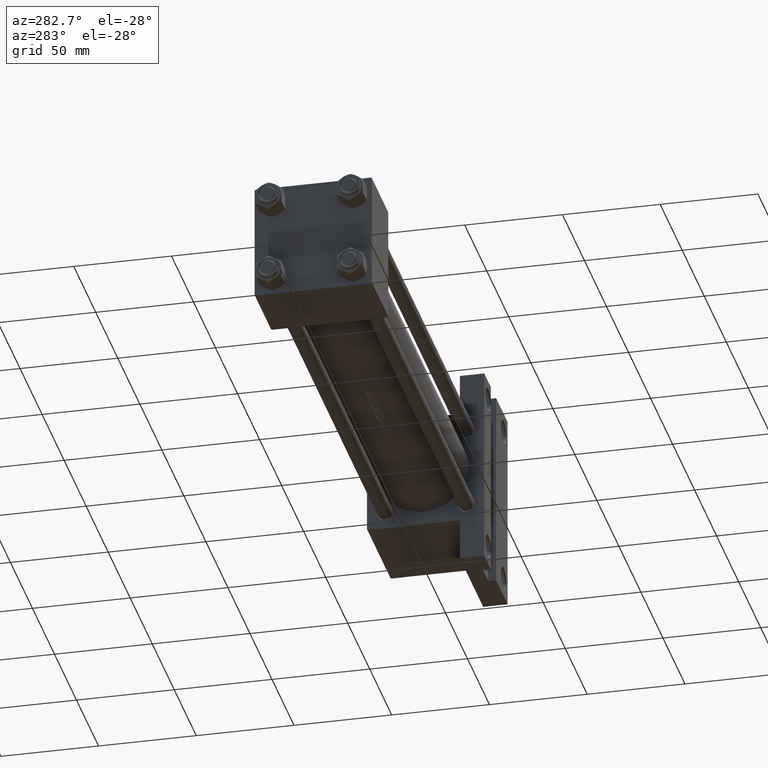
[diagram: clean part render]
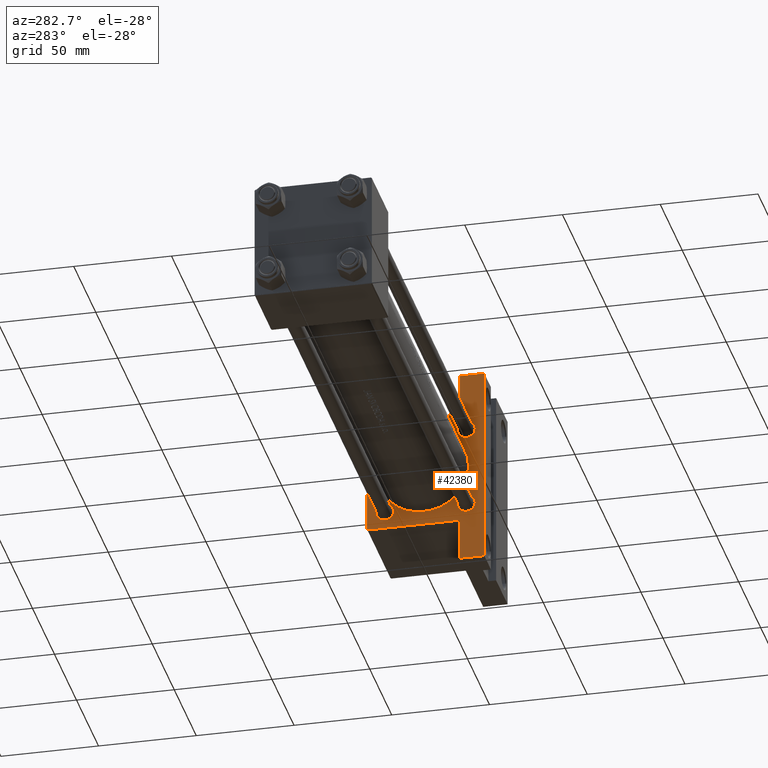
[diagram: same view with one face highlighted and labeled with its STEP entity id]
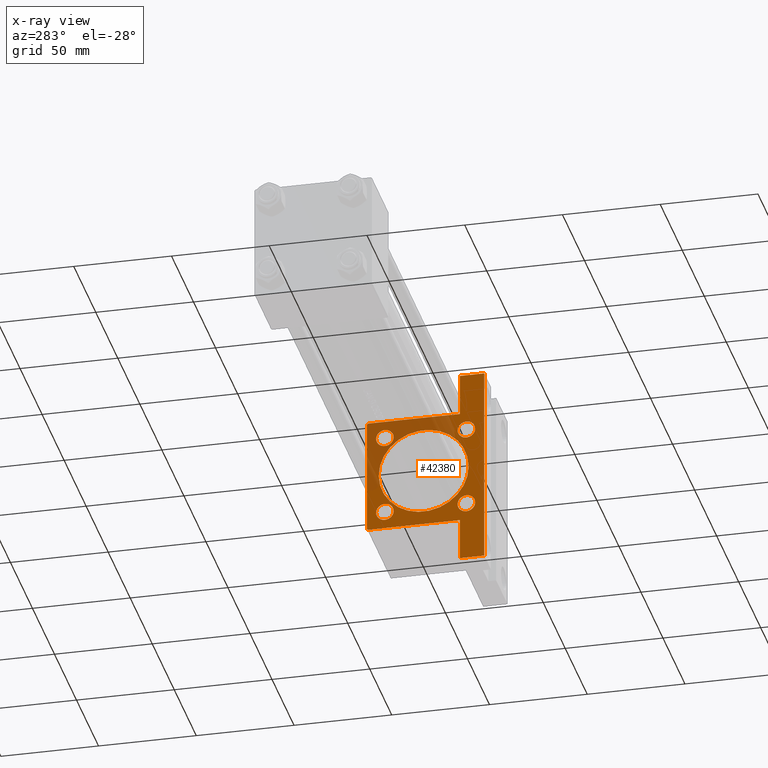
[diagram: x-ray of the same camera — body ghosted, the highlighted face saturated]
A machine part, auxiliary view. The second image highlights one B-rep face of the part: STEP entity #42380.
The next image is the same camera in x-ray: the body ghosted, the highlighted face saturated — about 25% of this face is hidden behind the body in this view.
In plain terms, the highlighted planar face has unit normal (-1, 0, -0).
Its self-contained STEP definition (entity closure, byte-faithful):
#385 = CARTESIAN_POINT ( 'NONE',  ( 255.0000000000000000, -51.50000000000002132, -17.49999999999999645 ) ) ;
#744 = VECTOR ( 'NONE', #46655, 1000.000000000000000 ) ;
#1034 = AXIS2_PLACEMENT_3D ( 'NONE', #40912, #33768, #41639 ) ;
#1106 = CARTESIAN_POINT ( 'NONE',  ( 255.0000000000000000, 20.84999999999999787, 25.35000000000000853 ) ) ;
#1207 = EDGE_LOOP ( 'NONE', ( #22134, #42260 ) ) ;
#1664 = PLANE ( 'NONE',  #16854 ) ;
#1930 = CARTESIAN_POINT ( 'NONE',  ( 255.0000000000000000, 51.49999999999997868, -17.49999999999999645 ) ) ;
#2127 = EDGE_CURVE ( 'NONE', #19014, #31498, #11375, .T. ) ;
#2527 = EDGE_LOOP ( 'NONE', ( #11075, #39629, #34434, #10064, #22545, #8592, #24953, #22250, #19512, #4591 ) ) ;
#2676 = DIRECTION ( 'NONE',  ( 1.000000000000000000, 0.000000000000000000, 0.000000000000000000 ) ) ;
#2679 = EDGE_CURVE ( 'NONE', #32842, #25130, #47162, .T. ) ;
#3154 = EDGE_CURVE ( 'NONE', #43622, #17155, #19050, .T. ) ;
#3286 = VECTOR ( 'NONE', #5884, 1000.000000000000000 ) ;
#3933 = CARTESIAN_POINT ( 'NONE',  ( 255.0000000000000000, -20.84999999999999076, -25.35000000000001208 ) ) ;
#4126 = CIRCLE ( 'NONE', #15898, 4.500000000000007105 ) ;
#4591 = ORIENTED_EDGE ( 'NONE', *, *, #25759, .T. ) ;
#4885 = DIRECTION ( 'NONE',  ( 0.000000000000000000, 0.000000000000000000, 1.000000000000000000 ) ) ;
#4892 = FACE_BOUND ( 'NONE', #9948, .T. ) ;
#5016 = ORIENTED_EDGE ( 'NONE', *, *, #46276, .T. ) ;
#5305 = DIRECTION ( 'NONE',  ( 1.000000000000000000, -0.000000000000000000, 0.000000000000000000 ) ) ;
#5381 = DIRECTION ( 'NONE',  ( 0.000000000000000000, 0.000000000000000000, 1.000000000000000000 ) ) ;
#5884 = DIRECTION ( 'NONE',  ( 0.000000000000000000, 0.000000000000000000, -1.000000000000000000 ) ) ;
#6414 = ORIENTED_EDGE ( 'NONE', *, *, #12556, .T. ) ;
#6429 = VERTEX_POINT ( 'NONE', #17827 ) ;
#6521 = VECTOR ( 'NONE', #28167, 1000.000000000000000 ) ;
#6775 = VECTOR ( 'NONE', #28275, 1000.000000000000000 ) ;
#6971 = EDGE_LOOP ( 'NONE', ( #36720, #32252 ) ) ;
#7269 = VECTOR ( 'NONE', #41441, 1000.000000000000000 ) ;
#7479 = VERTEX_POINT ( 'NONE', #19466 ) ;
#7511 = AXIS2_PLACEMENT_3D ( 'NONE', #34893, #5305, #20546 ) ;
#7516 = CARTESIAN_POINT ( 'NONE',  ( 255.0000000000000000, 20.84999999999999787, -16.34999999999999432 ) ) ;
#7630 = EDGE_CURVE ( 'NONE', #36316, #12221, #9609, .T. ) ;
#8287 = VERTEX_POINT ( 'NONE', #15047 ) ;
#8418 = VERTEX_POINT ( 'NONE', #17489 ) ;
#8592 = ORIENTED_EDGE ( 'NONE', *, *, #42458, .T. ) ;
#8829 = EDGE_CURVE ( 'NONE', #7479, #34486, #48621, .T. ) ;
#9077 = LINE ( 'NONE', #17674, #26395 ) ;
#9334 = CARTESIAN_POINT ( 'NONE',  ( 255.0000000000000000, -1.224646799147354686E-16, 1.000000000000000888 ) ) ;
#9609 = LINE ( 'NONE', #13539, #31274 ) ;
#9948 = EDGE_LOOP ( 'NONE', ( #36305, #6414 ) ) ;
#10064 = ORIENTED_EDGE ( 'NONE', *, *, #2679, .T. ) ;
#10671 = CIRCLE ( 'NONE', #7511, 4.500000000000007105 ) ;
#10884 = EDGE_LOOP ( 'NONE', ( #5016, #43930 ) ) ;
#10897 = EDGE_LOOP ( 'NONE', ( #41931, #40002 ) ) ;
#10983 = CIRCLE ( 'NONE', #38543, 4.500000000000007105 ) ;
#11075 = ORIENTED_EDGE ( 'NONE', *, *, #33221, .F. ) ;
#11375 = LINE ( 'NONE', #34299, #7269 ) ;
#12071 = EDGE_CURVE ( 'NONE', #19014, #44499, #26512, .T. ) ;
#12221 = VERTEX_POINT ( 'NONE', #12941 ) ;
#12398 = EDGE_CURVE ( 'NONE', #41270, #31498, #39268, .T. ) ;
#12556 = EDGE_CURVE ( 'NONE', #25804, #17896, #10983, .T. ) ;
#12941 = CARTESIAN_POINT ( 'NONE',  ( 255.0000000000000000, 30.00000000000000000, 29.50000000000002487 ) ) ;
#13252 = DIRECTION ( 'NONE',  ( -1.000000000000000000, 0.000000000000000000, -0.000000000000000000 ) ) ;
#13315 = CARTESIAN_POINT ( 'NONE',  ( 255.0000000000000000, 30.00000000000000000, -17.49999999999998224 ) ) ;
#13539 = CARTESIAN_POINT ( 'NONE',  ( 255.0000000000000000, 29.75000000000001776, 29.75000000000001776 ) ) ;
#13608 = VERTEX_POINT ( 'NONE', #3933 ) ;
#13747 = DIRECTION ( 'NONE',  ( 0.000000000000000000, 0.000000000000000000, -1.000000000000000000 ) ) ;
#14257 = CARTESIAN_POINT ( 'NONE',  ( 255.0000000000000000, 2.694222958124176809E-15, -22.00000000000000000 ) ) ;
#14456 = CARTESIAN_POINT ( 'NONE',  ( 255.0000000000000000, 30.00000000000000000, -29.99999999999999289 ) ) ;
#14985 = VERTEX_POINT ( 'NONE', #14257 ) ;
#15047 = CARTESIAN_POINT ( 'NONE',  ( 255.0000000000000000, -1.224646799147354686E-16, 24.00000000000000000 ) ) ;
#15363 = AXIS2_PLACEMENT_3D ( 'NONE', #9334, #2676, #13747 ) ;
#15422 = CARTESIAN_POINT ( 'NONE',  ( 255.0000000000000000, -20.84999999999999076, 25.35000000000001208 ) ) ;
#15505 = DIRECTION ( 'NONE',  ( 1.000000000000000000, -0.000000000000000000, 0.000000000000000000 ) ) ;
#15661 = VERTEX_POINT ( 'NONE', #19709 ) ;
#15670 = DIRECTION ( 'NONE',  ( 0.000000000000000000, 0.000000000000000000, -1.000000000000000000 ) ) ;
#15715 = DIRECTION ( 'NONE',  ( 0.000000000000000000, 0.000000000000000000, 1.000000000000000000 ) ) ;
#15898 = AXIS2_PLACEMENT_3D ( 'NONE', #27336, #15505, #45588 ) ;
#16203 = DIRECTION ( 'NONE',  ( 1.000000000000000000, -0.000000000000000000, 0.000000000000000000 ) ) ;
#16826 = EDGE_CURVE ( 'NONE', #34486, #7479, #18982, .T. ) ;
#16854 = AXIS2_PLACEMENT_3D ( 'NONE', #24337, #13252, #47262 ) ;
#17155 = VERTEX_POINT ( 'NONE', #45512 ) ;
#17371 = CARTESIAN_POINT ( 'NONE',  ( 255.0000000000000000, -29.74999999999999645, 29.74999999999999645 ) ) ;
#17489 = CARTESIAN_POINT ( 'NONE',  ( 255.0000000000000000, -29.50000000000000000, 29.99999999999999289 ) ) ;
#17674 = CARTESIAN_POINT ( 'NONE',  ( 255.0000000000000000, 30.00000000000000000, 30.00000000000000000 ) ) ;
#17827 = CARTESIAN_POINT ( 'NONE',  ( 255.0000000000000000, -20.84999999999999076, -16.34999999999999787 ) ) ;
#17896 = VERTEX_POINT ( 'NONE', #1106 ) ;
#18318 = CIRCLE ( 'NONE', #1034, 23.00000000000000000 ) ;
#18982 = CIRCLE ( 'NONE', #31592, 4.500000000000007105 ) ;
#19014 = VERTEX_POINT ( 'NONE', #34589 ) ;
#19050 = CIRCLE ( 'NONE', #46631, 4.500000000000007105 ) ;
#19408 = CARTESIAN_POINT ( 'NONE',  ( 255.0000000000000000, -20.84999999999999076, -20.85000000000000497 ) ) ;
#19466 = CARTESIAN_POINT ( 'NONE',  ( 255.0000000000000000, -20.84999999999999076, 16.34999999999999787 ) ) ;
#19512 = ORIENTED_EDGE ( 'NONE', *, *, #12398, .F. ) ;
#19709 = CARTESIAN_POINT ( 'NONE',  ( 255.0000000000000000, 51.49999999999997868, -29.99999999999999645 ) ) ;
#20546 = DIRECTION ( 'NONE',  ( 0.000000000000000000, 0.000000000000000000, 1.000000000000000000 ) ) ;
#21051 = EDGE_CURVE ( 'NONE', #25130, #15661, #28787, .T. ) ;
#21120 = FACE_OUTER_BOUND ( 'NONE', #2527, .T. ) ;
#21573 = VECTOR ( 'NONE', #29486, 1000.000000000000000 ) ;
#21946 = EDGE_CURVE ( 'NONE', #17155, #43622, #4126, .T. ) ;
#22134 = ORIENTED_EDGE ( 'NONE', *, *, #3154, .T. ) ;
#22185 = DIRECTION ( 'NONE',  ( 1.000000000000000000, -0.000000000000000000, 0.000000000000000000 ) ) ;
#22250 = ORIENTED_EDGE ( 'NONE', *, *, #2127, .T. ) ;
#22545 = ORIENTED_EDGE ( 'NONE', *, *, #21051, .T. ) ;
#22768 = CARTESIAN_POINT ( 'NONE',  ( 255.0000000000000000, 20.84999999999999787, 16.34999999999999432 ) ) ;
#23292 = CIRCLE ( 'NONE', #42949, 4.500000000000007105 ) ;
#23376 = FACE_BOUND ( 'NONE', #10897, .T. ) ;
#23918 = CARTESIAN_POINT ( 'NONE',  ( 255.0000000000000000, 20.84999999999999787, 20.85000000000000142 ) ) ;
#24337 = CARTESIAN_POINT ( 'NONE',  ( 255.0000000000000000, 0.000000000000000000, 0.000000000000000000 ) ) ;
#24953 = ORIENTED_EDGE ( 'NONE', *, *, #12071, .F. ) ;
#25130 = VERTEX_POINT ( 'NONE', #47798 ) ;
#25738 = DIRECTION ( 'NONE',  ( -0.000000000000000000, 0.7071067811865474617, 0.7071067811865474617 ) ) ;
#25759 = EDGE_CURVE ( 'NONE', #41270, #8418, #33146, .T. ) ;
#25804 = VERTEX_POINT ( 'NONE', #22768 ) ;
#26395 = VECTOR ( 'NONE', #46538, 1000.000000000000000 ) ;
#26512 = LINE ( 'NONE', #385, #34611 ) ;
#26988 = CIRCLE ( 'NONE', #45853, 4.500000000000007105 ) ;
#27336 = CARTESIAN_POINT ( 'NONE',  ( 255.0000000000000000, 20.84999999999999787, -20.85000000000000142 ) ) ;
#27540 = FACE_BOUND ( 'NONE', #6971, .T. ) ;
#28167 = DIRECTION ( 'NONE',  ( -0.000000000000000000, 1.000000000000000000, -0.000000000000000000 ) ) ;
#28275 = DIRECTION ( 'NONE',  ( 0.000000000000000000, -1.000000000000000000, -1.156482317317871478E-16 ) ) ;
#28787 = LINE ( 'NONE', #1930, #3286 ) ;
#29205 = CARTESIAN_POINT ( 'NONE',  ( 255.0000000000000000, 29.50000000000002487, 30.00000000000000000 ) ) ;
#29486 = DIRECTION ( 'NONE',  ( 0.000000000000000000, -1.000000000000000000, -1.156482317317871478E-16 ) ) ;
#29623 = EDGE_CURVE ( 'NONE', #8287, #14985, #38224, .T. ) ;
#30121 = EDGE_CURVE ( 'NONE', #17896, #25804, #23292, .T. ) ;
#31251 = FACE_BOUND ( 'NONE', #10884, .T. ) ;
#31274 = VECTOR ( 'NONE', #32532, 1000.000000000000114 ) ;
#31498 = VERTEX_POINT ( 'NONE', #43486 ) ;
#31592 = AXIS2_PLACEMENT_3D ( 'NONE', #34487, #46304, #5381 ) ;
#31612 = CARTESIAN_POINT ( 'NONE',  ( 255.0000000000000000, -30.00000000000000000, 29.99999999999999289 ) ) ;
#31992 = LINE ( 'NONE', #35442, #6775 ) ;
#32252 = ORIENTED_EDGE ( 'NONE', *, *, #39953, .T. ) ;
#32532 = DIRECTION ( 'NONE',  ( 0.000000000000000000, 0.7071067811865474617, -0.7071067811865474617 ) ) ;
#32614 = DIRECTION ( 'NONE',  ( 1.000000000000000000, -0.000000000000000000, 0.000000000000000000 ) ) ;
#32842 = VERTEX_POINT ( 'NONE', #13315 ) ;
#33062 = DIRECTION ( 'NONE',  ( 0.000000000000000000, 0.000000000000000000, 1.000000000000000000 ) ) ;
#33146 = LINE ( 'NONE', #17371, #36531 ) ;
#33221 = EDGE_CURVE ( 'NONE', #36316, #8418, #31992, .T. ) ;
#33248 = EDGE_CURVE ( 'NONE', #12221, #32842, #9077, .T. ) ;
#33303 = CARTESIAN_POINT ( 'NONE',  ( 255.0000000000000000, -20.84999999999999076, 20.85000000000000497 ) ) ;
#33768 = DIRECTION ( 'NONE',  ( 1.000000000000000000, 0.000000000000000000, 0.000000000000000000 ) ) ;
#34299 = CARTESIAN_POINT ( 'NONE',  ( 255.0000000000000000, -51.50000000000002132, -17.49999999999999645 ) ) ;
#34434 = ORIENTED_EDGE ( 'NONE', *, *, #33248, .T. ) ;
#34486 = VERTEX_POINT ( 'NONE', #15422 ) ;
#34487 = CARTESIAN_POINT ( 'NONE',  ( 255.0000000000000000, -20.84999999999999076, 20.85000000000000497 ) ) ;
#34589 = CARTESIAN_POINT ( 'NONE',  ( 255.0000000000000000, -51.50000000000002132, -17.49999999999999645 ) ) ;
#34611 = VECTOR ( 'NONE', #15670, 1000.000000000000000 ) ;
#34893 = CARTESIAN_POINT ( 'NONE',  ( 255.0000000000000000, -20.84999999999999076, -20.85000000000000497 ) ) ;
#35442 = CARTESIAN_POINT ( 'NONE',  ( 255.0000000000000000, 30.00000000000000000, 30.00000000000000000 ) ) ;
#36305 = ORIENTED_EDGE ( 'NONE', *, *, #30121, .T. ) ;
#36312 = CARTESIAN_POINT ( 'NONE',  ( 255.0000000000000000, 51.49999999999997868, -17.49999999999999645 ) ) ;
#36316 = VERTEX_POINT ( 'NONE', #29205 ) ;
#36531 = VECTOR ( 'NONE', #25738, 1000.000000000000114 ) ;
#36720 = ORIENTED_EDGE ( 'NONE', *, *, #29623, .T. ) ;
#38224 = CIRCLE ( 'NONE', #15363, 23.00000000000000000 ) ;
#38325 = CARTESIAN_POINT ( 'NONE',  ( 255.0000000000000000, -51.50000000000002132, -29.99999999999999645 ) ) ;
#38419 = FACE_BOUND ( 'NONE', #1207, .T. ) ;
#38543 = AXIS2_PLACEMENT_3D ( 'NONE', #23918, #38964, #38725 ) ;
#38725 = DIRECTION ( 'NONE',  ( 0.000000000000000000, 0.000000000000000000, 1.000000000000000000 ) ) ;
#38764 = EDGE_CURVE ( 'NONE', #13608, #6429, #26988, .T. ) ;
#38964 = DIRECTION ( 'NONE',  ( 1.000000000000000000, -0.000000000000000000, 0.000000000000000000 ) ) ;
#39200 = AXIS2_PLACEMENT_3D ( 'NONE', #33303, #22185, #33062 ) ;
#39268 = LINE ( 'NONE', #31612, #744 ) ;
#39629 = ORIENTED_EDGE ( 'NONE', *, *, #7630, .T. ) ;
#39953 = EDGE_CURVE ( 'NONE', #14985, #8287, #18318, .T. ) ;
#40002 = ORIENTED_EDGE ( 'NONE', *, *, #8829, .T. ) ;
#40252 = CARTESIAN_POINT ( 'NONE',  ( 255.0000000000000000, 20.84999999999999787, 20.85000000000000142 ) ) ;
#40912 = CARTESIAN_POINT ( 'NONE',  ( 255.0000000000000000, -1.224646799147354686E-16, 1.000000000000000888 ) ) ;
#41270 = VERTEX_POINT ( 'NONE', #47490 ) ;
#41441 = DIRECTION ( 'NONE',  ( 0.000000000000000000, 1.000000000000000000, 0.000000000000000000 ) ) ;
#41639 = DIRECTION ( 'NONE',  ( 0.000000000000000000, 0.000000000000000000, -1.000000000000000000 ) ) ;
#41931 = ORIENTED_EDGE ( 'NONE', *, *, #16826, .T. ) ;
#42091 = DIRECTION ( 'NONE',  ( 1.000000000000000000, -0.000000000000000000, 0.000000000000000000 ) ) ;
#42260 = ORIENTED_EDGE ( 'NONE', *, *, #21946, .T. ) ;
#42380 = ADVANCED_FACE ( 'NONE', ( #23376, #4892, #38419, #31251, #27540, #21120 ), #1664, .T. ) ;
#42458 = EDGE_CURVE ( 'NONE', #15661, #44499, #44773, .T. ) ;
#42949 = AXIS2_PLACEMENT_3D ( 'NONE', #40252, #32614, #44424 ) ;
#43486 = CARTESIAN_POINT ( 'NONE',  ( 255.0000000000000000, -30.00000000000000000, -17.49999999999999645 ) ) ;
#43622 = VERTEX_POINT ( 'NONE', #7516 ) ;
#43930 = ORIENTED_EDGE ( 'NONE', *, *, #38764, .T. ) ;
#44424 = DIRECTION ( 'NONE',  ( 0.000000000000000000, 0.000000000000000000, 1.000000000000000000 ) ) ;
#44499 = VERTEX_POINT ( 'NONE', #38325 ) ;
#44773 = LINE ( 'NONE', #14456, #21573 ) ;
#45512 = CARTESIAN_POINT ( 'NONE',  ( 255.0000000000000000, 20.84999999999999787, -25.35000000000000853 ) ) ;
#45588 = DIRECTION ( 'NONE',  ( 0.000000000000000000, 0.000000000000000000, 1.000000000000000000 ) ) ;
#45795 = CARTESIAN_POINT ( 'NONE',  ( 255.0000000000000000, 20.84999999999999787, -20.85000000000000142 ) ) ;
#45853 = AXIS2_PLACEMENT_3D ( 'NONE', #19408, #42091, #15715 ) ;
#46276 = EDGE_CURVE ( 'NONE', #6429, #13608, #10671, .T. ) ;
#46304 = DIRECTION ( 'NONE',  ( 1.000000000000000000, -0.000000000000000000, 0.000000000000000000 ) ) ;
#46538 = DIRECTION ( 'NONE',  ( 0.000000000000000000, 0.000000000000000000, -1.000000000000000000 ) ) ;
#46631 = AXIS2_PLACEMENT_3D ( 'NONE', #45795, #16203, #4885 ) ;
#46655 = DIRECTION ( 'NONE',  ( 0.000000000000000000, 0.000000000000000000, -1.000000000000000000 ) ) ;
#47162 = LINE ( 'NONE', #36312, #6521 ) ;
#47262 = DIRECTION ( 'NONE',  ( -0.000000000000000000, 0.000000000000000000, 1.000000000000000000 ) ) ;
#47490 = CARTESIAN_POINT ( 'NONE',  ( 255.0000000000000000, -30.00000000000000000, 29.49999999999999289 ) ) ;
#47798 = CARTESIAN_POINT ( 'NONE',  ( 255.0000000000000000, 51.49999999999997868, -17.49999999999999645 ) ) ;
#48621 = CIRCLE ( 'NONE', #39200, 4.500000000000007105 ) ;